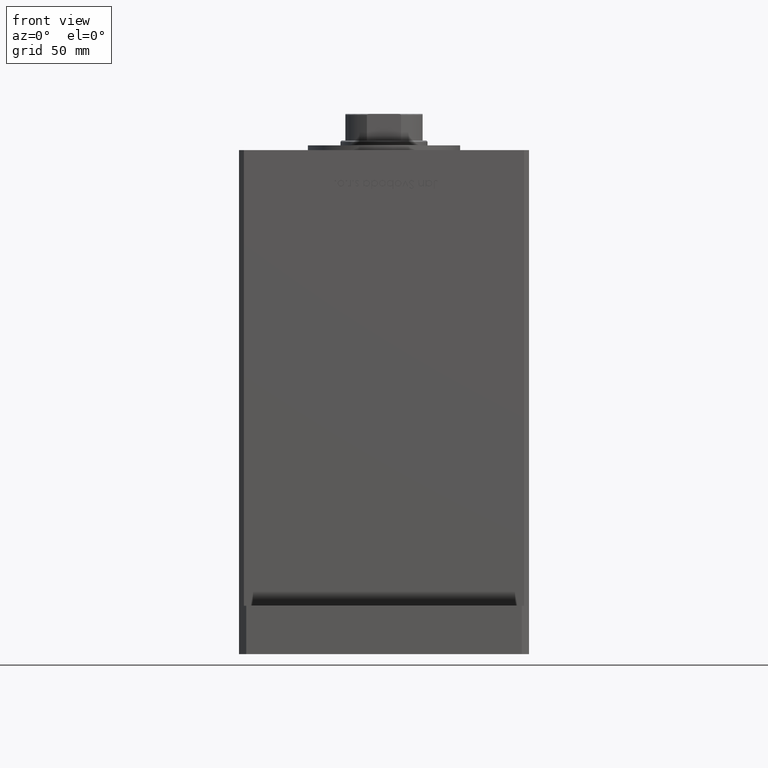
[diagram: clean part render]
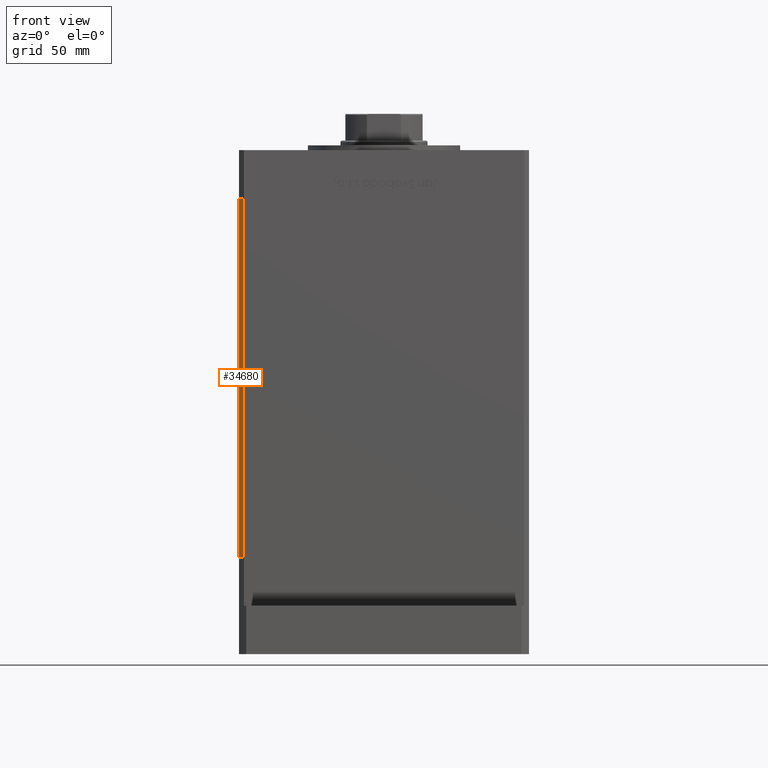
[diagram: same view with one face highlighted and labeled with its STEP entity id]
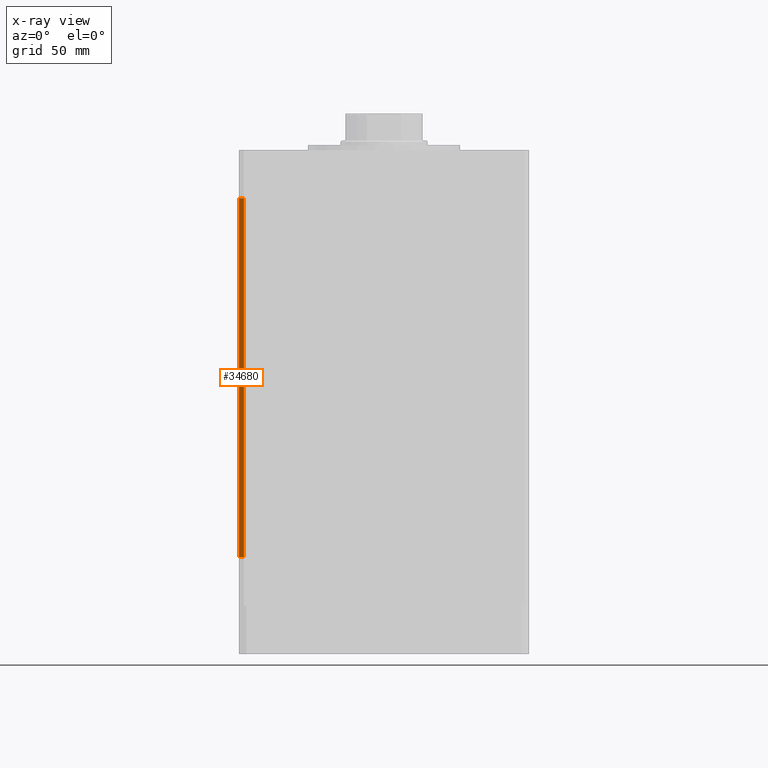
[diagram: x-ray of the same camera — body ghosted, the highlighted face saturated]
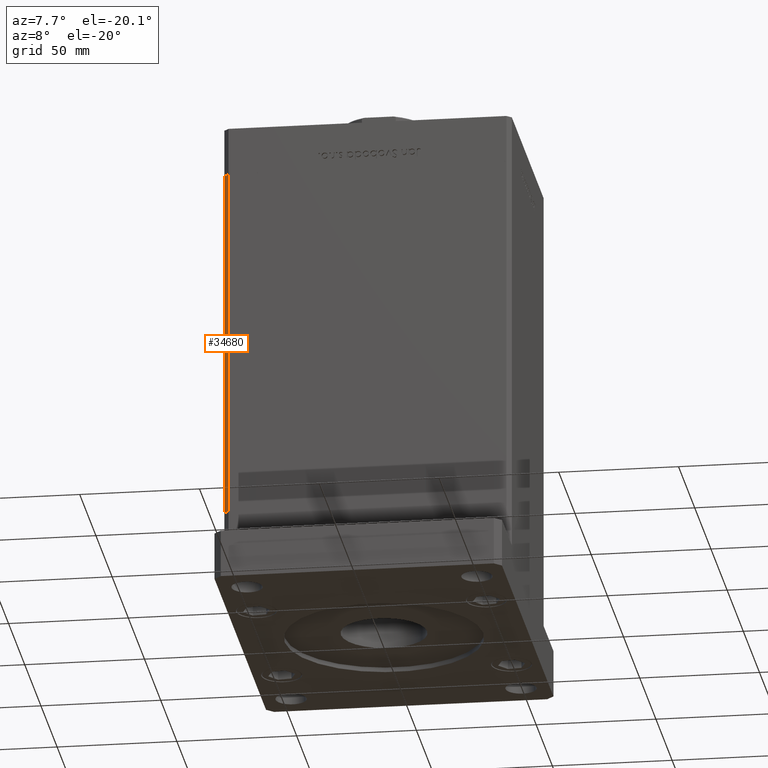
[diagram: same view with one face highlighted and labeled with its STEP entity id]
A machine part, front view. The second image highlights one B-rep face of the part: STEP entity #34680.
The next image is the same camera in x-ray: the body ghosted, the highlighted face saturated — about 0% of this face is hidden behind the body in this view.
A second angle (auxiliary view) of the same face is appended — the face is thin or edge-on in the first view.
In plain terms, the highlighted planar face has unit normal (0.7071, 0.7071, 0).
Its self-contained STEP definition (entity closure, byte-faithful):
#56 = VECTOR ( 'NONE', #48688, 1000.000000000000114 ) ;
#546 = EDGE_CURVE ( 'NONE', #23199, #41024, #39244, .T. ) ;
#734 = CARTESIAN_POINT ( 'NONE',  ( -57.99999999999997868, -51.00000000000000711, 0.000000000000000000 ) ) ;
#2866 = CARTESIAN_POINT ( 'NONE',  ( -59.99999999999998579, -49.00000000000000000, 148.5000000000000000 ) ) ;
#4870 = VERTEX_POINT ( 'NONE', #734 ) ;
#6484 = EDGE_LOOP ( 'NONE', ( #36515, #10198, #36567, #24632 ) ) ;
#9072 = DIRECTION ( 'NONE',  ( -0.7071067811865474617, 0.7071067811865474617, 0.000000000000000000 ) ) ;
#9344 = PLANE ( 'NONE',  #20911 ) ;
#10198 = ORIENTED_EDGE ( 'NONE', *, *, #15613, .F. ) ;
#11749 = CARTESIAN_POINT ( 'NONE',  ( -59.99999999999998579, -49.00000000000000000, 0.000000000000000000 ) ) ;
#12524 = LINE ( 'NONE', #11749, #12994 ) ;
#12994 = VECTOR ( 'NONE', #28970, 1000.000000000000114 ) ;
#13630 = EDGE_CURVE ( 'NONE', #23199, #36269, #28214, .T. ) ;
#15613 = EDGE_CURVE ( 'NONE', #36269, #4870, #52773, .T. ) ;
#17433 = DIRECTION ( 'NONE',  ( 0.7071067811865475727, 0.7071067811865475727, -0.000000000000000000 ) ) ;
#17469 = CARTESIAN_POINT ( 'NONE',  ( -57.99999999999997868, -51.00000000000000711, 148.5000000000000000 ) ) ;
#19562 = DIRECTION ( 'NONE',  ( -0.000000000000000000, -0.000000000000000000, -1.000000000000000000 ) ) ;
#20911 = AXIS2_PLACEMENT_3D ( 'NONE', #34408, #17433, #9072 ) ;
#23199 = VERTEX_POINT ( 'NONE', #30005 ) ;
#23417 = CARTESIAN_POINT ( 'NONE',  ( -57.99999999999997868, -51.00000000000000711, 148.5000000000000000 ) ) ;
#24632 = ORIENTED_EDGE ( 'NONE', *, *, #546, .T. ) ;
#27412 = EDGE_CURVE ( 'NONE', #41024, #4870, #12524, .T. ) ;
#28214 = LINE ( 'NONE', #2866, #56 ) ;
#28970 = DIRECTION ( 'NONE',  ( 0.7071067811865474617, -0.7071067811865474617, 0.000000000000000000 ) ) ;
#30005 = CARTESIAN_POINT ( 'NONE',  ( -59.99999999999998579, -49.00000000000000000, 148.5000000000000000 ) ) ;
#31510 = DIRECTION ( 'NONE',  ( -0.000000000000000000, -0.000000000000000000, -1.000000000000000000 ) ) ;
#34408 = CARTESIAN_POINT ( 'NONE',  ( -59.99999999999998579, -49.00000000000000000, 148.5000000000000000 ) ) ;
#34680 = ADVANCED_FACE ( 'NONE', ( #38440 ), #9344, .F. ) ;
#36269 = VERTEX_POINT ( 'NONE', #17469 ) ;
#36515 = ORIENTED_EDGE ( 'NONE', *, *, #27412, .T. ) ;
#36567 = ORIENTED_EDGE ( 'NONE', *, *, #13630, .F. ) ;
#37165 = VECTOR ( 'NONE', #31510, 1000.000000000000000 ) ;
#38440 = FACE_OUTER_BOUND ( 'NONE', #6484, .T. ) ;
#39244 = LINE ( 'NONE', #44087, #47935 ) ;
#41024 = VERTEX_POINT ( 'NONE', #41594 ) ;
#41594 = CARTESIAN_POINT ( 'NONE',  ( -59.99999999999998579, -49.00000000000000000, 0.000000000000000000 ) ) ;
#44087 = CARTESIAN_POINT ( 'NONE',  ( -59.99999999999998579, -49.00000000000000000, 148.5000000000000000 ) ) ;
#47935 = VECTOR ( 'NONE', #19562, 1000.000000000000000 ) ;
#48688 = DIRECTION ( 'NONE',  ( 0.7071067811865474617, -0.7071067811865474617, 0.000000000000000000 ) ) ;
#52773 = LINE ( 'NONE', #23417, #37165 ) ;